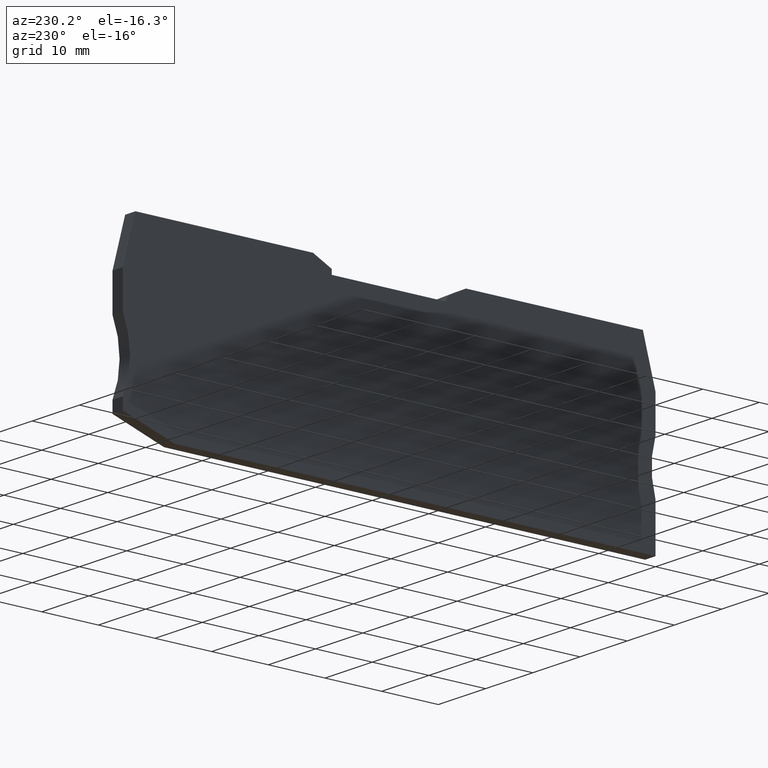
[diagram: clean part render]
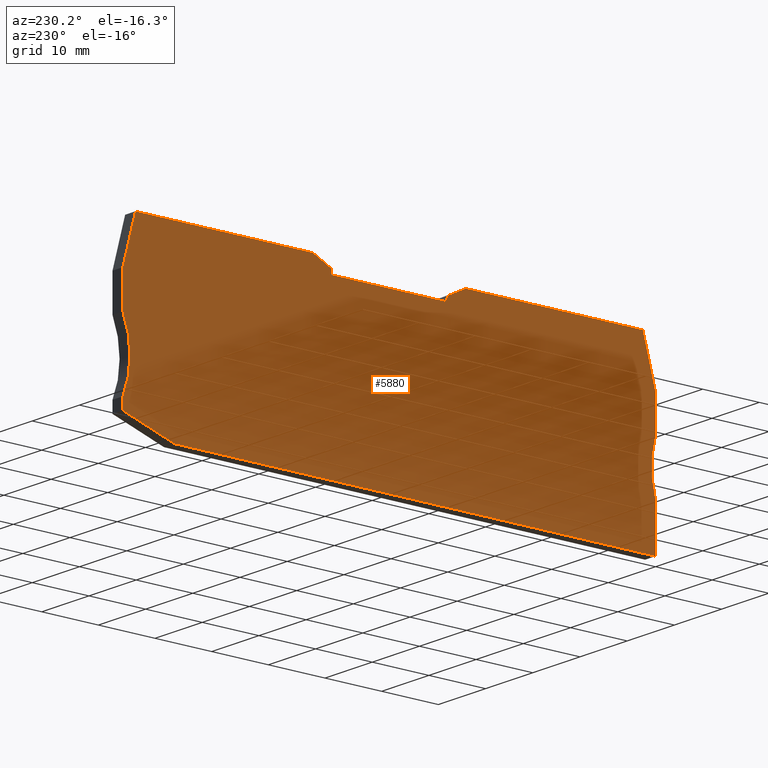
[diagram: same view with one face highlighted and labeled with its STEP entity id]
A machine part, auxiliary view. The second image highlights one B-rep face of the part: STEP entity #5880.
In plain terms, the highlighted planar face has unit normal (-1, -0, -0).
Its self-contained STEP definition (entity closure, byte-faithful):
#200=CARTESIAN_POINT('',(85.1296808260529,-35.2009550015923,
-3.68594044175553E-14));
#210=VERTEX_POINT('',#200);
#240=CARTESIAN_POINT('',(47.920285,-47.4566600413391,
-3.68594044175553E-14));
#250=DIRECTION('',(0.949806217012117,0.312838856482264,0.));
#260=VECTOR('',#250,1.);
#270=LINE('',#240,#260);
#280=CARTESIAN_POINT('',(76.0243170722712,-38.2000000000014,
-3.68594044175554E-14));
#290=VERTEX_POINT('',#280);
#300=EDGE_CURVE('',#290,#210,#270,.T.);
#2010=CARTESIAN_POINT('',(82.9015374042713,-6.65000000001045,
-3.68594044175555E-14));
#2020=VERTEX_POINT('',#2010);
#2100=CARTESIAN_POINT('',(51.5784150526186,-6.65000000001046,
-3.68594044175553E-14));
#2110=VERTEX_POINT('',#2100);
#2140=CARTESIAN_POINT('',(47.920285,-6.65000000001046,
-3.68594044175553E-14));
#2150=DIRECTION('',(-1.,0.,3.52929730522715E-30));
#2160=VECTOR('',#2150,1.);
#2170=LINE('',#2140,#2160);
#2180=EDGE_CURVE('',#2020,#2110,#2170,.T.);
#2390=CARTESIAN_POINT('',(85.1296808260528,-33.2000000000057,
-3.68594044175555E-14));
#2400=VERTEX_POINT('',#2390);
#2480=CARTESIAN_POINT('',(85.1296808260516,-21.2000000000027,
-3.68594044175555E-14));
#2490=VERTEX_POINT('',#2480);
#2520=CARTESIAN_POINT('',(98.8774079109191,-27.2000000000027,
-3.68594044175555E-14));
#2530=DIRECTION('',(0.,0.,1.));
#2540=DIRECTION('',(1.,0.,0.));
#2550=AXIS2_PLACEMENT_3D('',#2520,#2530,#2540);
#2560=CIRCLE('',#2550,15.);
#2570=EDGE_CURVE('',#2490,#2400,#2560,.T.);
#2740=CARTESIAN_POINT('',(-13.9400739881395,-33.886127,
-3.68594044175551E-14));
#2750=DIRECTION('',(-0.258819045102903,-0.965925826288966,0.));
#2760=VECTOR('',#2750,1.);
#2770=LINE('',#2740,#2760);
#2780=CARTESIAN_POINT('',(-6.64217575352925,-6.65000000001046,
-3.68594044175551E-14));
#2790=VERTEX_POINT('',#2780);
#2800=CARTESIAN_POINT('',(-8.87031917530947,-14.9655444566314,
-3.68594044175551E-14));
#2810=VERTEX_POINT('',#2800);
#2820=EDGE_CURVE('',#2790,#2810,#2770,.T.);
#3170=CARTESIAN_POINT('',(27.7810984886105,-8.25070883130205,
-3.68594044175553E-14));
#3180=VERTEX_POINT('',#3170);
#3210=CARTESIAN_POINT('',(38.6158283461584,-33.886127,
-3.68594044175553E-14));
#3220=DIRECTION('',(-0.389303997086195,0.92110933002153,0.));
#3230=VECTOR('',#3220,1.);
#3240=LINE('',#3210,#3230);
#3250=CARTESIAN_POINT('',(28.1611811075905,-9.15000000000794,
-3.68594044175552E-14));
#3260=VERTEX_POINT('',#3250);
#3270=EDGE_CURVE('',#3260,#3180,#3240,.T.);
#3500=CARTESIAN_POINT('',(85.1296808260516,-33.886127,
-3.68594044175555E-14));
#3510=DIRECTION('',(-2.77555756156289E-17,1.,0.));
#3520=VECTOR('',#3510,1.);
#3530=LINE('',#3500,#3520);
#3540=CARTESIAN_POINT('',(85.1296808260516,-14.9655444566315,
-3.68594044175555E-14));
#3550=VERTEX_POINT('',#3540);
#3560=EDGE_CURVE('',#2490,#3550,#3530,.T.);
#3820=CARTESIAN_POINT('',(47.920285,-38.2000000000014,
-3.68594044175553E-14));
#3830=DIRECTION('',(1.,0.,-3.52929730522715E-30));
#3840=VECTOR('',#3830,1.);
#3850=LINE('',#3820,#3840);
#3860=CARTESIAN_POINT('',(-8.87031917530946,-38.2000000000014,
-3.68594044175551E-14));
#3870=VERTEX_POINT('',#3860);
#3880=EDGE_CURVE('',#3870,#290,#3850,.T.);
#4160=CARTESIAN_POINT('',(24.5796808260341,-6.65000000001046,
-3.68594044175552E-14));
#4170=VERTEX_POINT('',#4160);
#4220=CARTESIAN_POINT('',(47.920285,-6.65000000001046,
-3.68594044175553E-14));
#4230=DIRECTION('',(-1.,0.,3.52929730522715E-30));
#4240=VECTOR('',#4230,1.);
#4250=LINE('',#4220,#4240);
#4260=EDGE_CURVE('',#4170,#2790,#4250,.T.);
#4430=CARTESIAN_POINT('',(48.2784150526289,-33.886127,
-3.68594044175553E-14));
#4440=DIRECTION('',(0.,-1.,0.));
#4450=VECTOR('',#4440,1.);
#4460=LINE('',#4430,#4450);
#4470=CARTESIAN_POINT('',(48.2784150526289,-8.30000000000332,
-3.68594044175553E-14));
#4480=VERTEX_POINT('',#4470);
#4490=CARTESIAN_POINT('',(48.2784150526289,-9.15000000000794,
-3.68594044175553E-14));
#4500=VERTEX_POINT('',#4490);
#4510=EDGE_CURVE('',#4480,#4500,#4460,.T.);
#4820=CARTESIAN_POINT('',(47.920285,-9.15000000000794,
-3.68594044175553E-14));
#4830=DIRECTION('',(-1.,1.88233225079641E-16,3.5252221702064E-30));
#4840=VECTOR('',#4830,1.);
#4850=LINE('',#4820,#4840);
#4860=EDGE_CURVE('',#4500,#3260,#4850,.T.);
#5070=CARTESIAN_POINT('',(-8.87031917530946,-33.886127,
-3.68594044175551E-14));
#5080=DIRECTION('',(0.,-1.,0.));
#5090=VECTOR('',#5080,1.);
#5100=LINE('',#5070,#5090);
#5110=CARTESIAN_POINT('',(-8.87031917530946,-30.2000000000115,
-3.68594044175552E-14));
#5120=VERTEX_POINT('',#5110);
#5130=EDGE_CURVE('',#5120,#3870,#5100,.T.);
#5310=CARTESIAN_POINT('',(13.8541909547486,-7.65000000001047,
-3.68594044175552E-14));
#5320=DIRECTION('',(-3.52929730522715E-30,0.,-1.));
#5330=DIRECTION('',(0.,1.,0.));
#5340=AXIS2_PLACEMENT_3D('',#5310,#5320,#5330);
#5350=PLANE('',#5340);
#5360=ORIENTED_EDGE('',*,*,#3270,.F.);
#5370=CARTESIAN_POINT('',(47.920285,-18.3203020870181,
-3.68594044175553E-14));
#5380=DIRECTION('',(-0.894427190999537,0.447213595500715,0.));
#5390=VECTOR('',#5380,1.);
#5400=LINE('',#5370,#5390);
#5410=EDGE_CURVE('',#3180,#4170,#5400,.T.);
#5420=ORIENTED_EDGE('',*,*,#5410,.F.);
#5430=ORIENTED_EDGE('',*,*,#4260,.F.);
#5440=ORIENTED_EDGE('',*,*,#2820,.F.);
#5450=CARTESIAN_POINT('',(-8.87031917530947,-33.886127,
-3.68594044175551E-14));
#5460=DIRECTION('',(0.,-1.,0.));
#5470=VECTOR('',#5460,1.);
#5480=LINE('',#5450,#5470);
#5490=CARTESIAN_POINT('',(-8.87031917530947,-21.2000000000055,
-3.68594044175552E-14));
#5500=VERTEX_POINT('',#5490);
#5510=EDGE_CURVE('',#2810,#5500,#5480,.T.);
#5520=ORIENTED_EDGE('',*,*,#5510,.F.);
#5530=CARTESIAN_POINT('',(-23.1794071965627,-25.7000000000085,
-3.68594044175552E-14));
#5540=DIRECTION('',(0.,0.,1.));
#5550=DIRECTION('',(1.,0.,0.));
#5560=AXIS2_PLACEMENT_3D('',#5530,#5540,#5550);
#5570=CIRCLE('',#5560,15.);
#5580=EDGE_CURVE('',#5120,#5500,#5570,.T.);
#5590=ORIENTED_EDGE('',*,*,#5580,.T.);
#5600=ORIENTED_EDGE('',*,*,#5130,.F.);
#5610=ORIENTED_EDGE('',*,*,#3880,.F.);
#5620=ORIENTED_EDGE('',*,*,#300,.F.);
#5630=CARTESIAN_POINT('',(85.1296808260528,-33.886127,
-3.68594044175555E-14));
#5640=DIRECTION('',(0.,-1.,0.));
#5650=VECTOR('',#5640,1.);
#5660=LINE('',#5630,#5650);
#5670=EDGE_CURVE('',#2400,#210,#5660,.T.);
#5680=ORIENTED_EDGE('',*,*,#5670,.T.);
#5690=ORIENTED_EDGE('',*,*,#2570,.T.);
#5700=ORIENTED_EDGE('',*,*,#3560,.F.);
#5710=CARTESIAN_POINT('',(90.1994356388816,-33.886127,
-3.68594044175555E-14));
#5720=DIRECTION('',(-0.258819045102903,0.965925826288966,0.));
#5730=VECTOR('',#5720,1.);
#5740=LINE('',#5710,#5730);
#5750=EDGE_CURVE('',#3550,#2020,#5740,.T.);
#5760=ORIENTED_EDGE('',*,*,#5750,.F.);
#5770=ORIENTED_EDGE('',*,*,#2180,.F.);
#5780=CARTESIAN_POINT('',(47.920285,-8.47906502631758,
-3.68594044175553E-14));
#5790=DIRECTION('',(-0.894427191000128,-0.447213595499534,0.));
#5800=VECTOR('',#5790,1.);
#5810=LINE('',#5780,#5800);
#5820=EDGE_CURVE('',#2110,#4480,#5810,.T.);
#5830=ORIENTED_EDGE('',*,*,#5820,.F.);
#5840=ORIENTED_EDGE('',*,*,#4510,.F.);
#5850=ORIENTED_EDGE('',*,*,#4860,.F.);
#5860=EDGE_LOOP('',(#5850,#5840,#5830,#5770,#5760,#5700,#5690,#5680,
#5620,#5610,#5600,#5590,#5520,#5440,#5430,#5420,#5360));
#5870=FACE_OUTER_BOUND('',#5860,.T.);
#5880=ADVANCED_FACE('',(#5870),#5350,.T.);